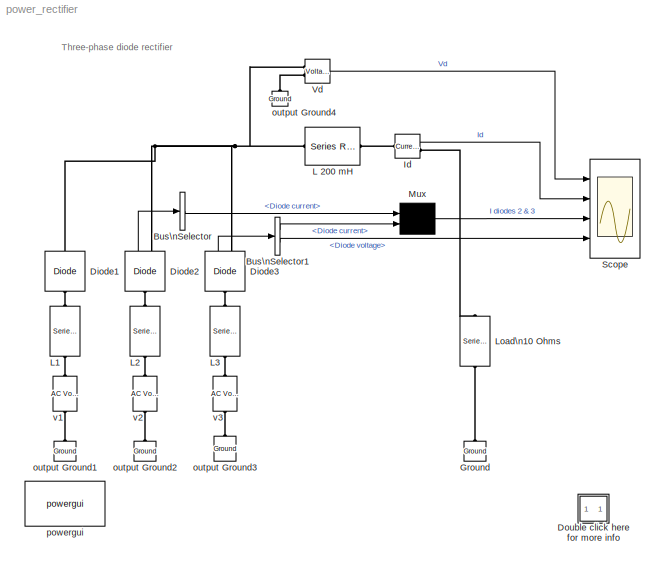
MODEL power_rectifier
KIND model
BLOCK [BusSelector] Bus\nSelector
  DialogController = Simulink.DDGSource_Bus
  OutputSignals = Diode current
  Ports = [1, 1]
BLOCK [BusSelector] Bus\nSelector1
  DialogController = Simulink.DDGSource_Bus
  OutputSignals = Diode current,Diode voltage
  Ports = [1, 2]
BLOCK [Reference] Diode1  REF=powerlib/Power\nElectronics/Diode
  AttributesFormatString = \\n
  Cs = 0.1e-6
  IC = 0
  Lon = 0
  Measurements = off
  Ports = [0, 0, 0, 0, 0, 1, 1]
  Ron = 1e-2
  Rs = 1000
  ShowPortLabels = on
  SourceBlock = powerlib/Power\nElectronics/Diode
  SourceType = Diode
  Vf = 0.8
BLOCK [Reference] Diode2  REF=powerlib/Power\nElectronics/Diode
  AttributesFormatString = \\n
  Cs = 0.1e-6
  IC = 0
  Lon = 0
  Measurements = on
  Ports = [0, 1, 0, 0, 0, 1, 1]
  Ron = 1e-2
  Rs = 1000
  ShowPortLabels = on
  SourceBlock = powerlib/Power\nElectronics/Diode
  SourceType = Diode
  Vf = 0.8
BLOCK [Reference] Diode3  REF=powerlib/Power\nElectronics/Diode
  AttributesFormatString = \\n
  Cs = 0.1e-6
  IC = 0
  Lon = 0
  Measurements = on
  Ports = [0, 1, 0, 0, 0, 1, 1]
  Ron = 1e-2
  Rs = 1000
  ShowPortLabels = on
  SourceBlock = powerlib/Power\nElectronics/Diode
  SourceType = Diode
  Vf = 0.8
BLOCK [SubSystem] Double click here for more info
  MaskDisplay = disp('?')
  MaskIconFrame = on
  MaskIconOpaque = on
  MaskIconRotate = none
  MaskIconUnits = autoscale
  MinAlgLoopOccurrences = off
  Ports = []
  RTWSystemCode = Auto
  TreatAsAtomicUnit = off
BLOCK [Reference] Ground  REF=powerlib/Elements/Ground
  AttributesFormatString = \\n
  LConnTagsString = a
  LeftPortType = p1
  PhysicalDomain = powersysdomain
  Ports = [0, 0, 0, 0, 0, 1]
  RightPortType = p1
  SourceBlock = powerlib/Elements/Ground
  SourceType = Ground
  SubClassName = unknown
BLOCK [Reference] Id  REF=powerlib/Measurements/Current Measurement
  AttributesFormatString = \\n
  OutputType = Magnitude
  PSBequivalent = 0
  PhasorSimulation = off
  Ports = [0, 1, 0, 0, 0, 1, 1]
  ShowPortLabels = on
  SourceBlock = powerlib/Measurements/Current Measurement
  SourceType = Current Measurement
  Tag = PoWeRsYsTeMmEaSuReMeNt
BLOCK [Reference] L 200 mH  REF=powerlib/Elements/Series RLC Branch
  AttributesFormatString = \\n
  Capacitance = inf
  Inductance = 200e-03
  LConnTagsString = __new0
  LeftPortType = p1
  Measurements = None
  PhysicalDomain = powersysdomain
  Ports = [0, 0, 0, 0, 0, 1, 1]
  RConnTagsString = __new0
  Resistance = 0
  RightPortType = p1
  SourceBlock = powerlib/Elements/Series RLC Branch
  SourceType = Series RLC Branch
  SubClassName = unknown
BLOCK [Reference] L1  REF=powerlib/Elements/Series RLC Branch
  AttributesFormatString = \\n
  Capacitance = inf
  Inductance = 5e-03
  LConnTagsString = __new0
  LeftPortType = p1
  Measurements = None
  PhysicalDomain = powersysdomain
  Ports = [0, 0, 0, 0, 0, 1, 1]
  RConnTagsString = __new0
  Resistance = 0
  RightPortType = p1
  SourceBlock = powerlib/Elements/Series RLC Branch
  SourceType = Series RLC Branch
  SubClassName = unknown
BLOCK [Reference] L2  REF=powerlib/Elements/Series RLC Branch
  AttributesFormatString = \\n
  Capacitance = inf
  Inductance = 5e-03
  LConnTagsString = __new0
  LeftPortType = p1
  Measurements = None
  PhysicalDomain = powersysdomain
  Ports = [0, 0, 0, 0, 0, 1, 1]
  RConnTagsString = __new0
  Resistance = 0
  RightPortType = p1
  SourceBlock = powerlib/Elements/Series RLC Branch
  SourceType = Series RLC Branch
  SubClassName = unknown
BLOCK [Reference] L3  REF=powerlib/Elements/Series RLC Branch
  AttributesFormatString = \\n
  Capacitance = inf
  Inductance = 5e-03
  LConnTagsString = __new0
  LeftPortType = p1
  Measurements = None
  PhysicalDomain = powersysdomain
  Ports = [0, 0, 0, 0, 0, 1, 1]
  RConnTagsString = __new0
  Resistance = 0
  RightPortType = p1
  SourceBlock = powerlib/Elements/Series RLC Branch
  SourceType = Series RLC Branch
  SubClassName = unknown
BLOCK [Reference] Load\n10 Ohms  REF=powerlib/Elements/Series RLC Branch
  AttributesFormatString = \\n
  Capacitance = inf
  Inductance = 0
  LConnTagsString = __new0
  LeftPortType = p1
  Measurements = None
  PhysicalDomain = powersysdomain
  Ports = [0, 0, 0, 0, 0, 1, 1]
  RConnTagsString = __new0
  Resistance = 10
  RightPortType = p1
  SourceBlock = powerlib/Elements/Series RLC Branch
  SourceType = Series RLC Branch
  SubClassName = unknown
BLOCK [Mux] Mux
  Inputs = 2
  Ports = [2, 1]
BLOCK [Scope] Scope
  DataFormat = Structure
  LimitDataPoints = off
  NumInputPorts = 4
  Ports = [4]
  TimeRange = 0.1
  YMax = 200~20~20~500
  YMin = 0~0~0~-500
  ZoomMode = yonly
BLOCK [Reference] Vd  REF=powerlib/Measurements/Voltage Measurement
  AttributesFormatString = \\n
  OutputType = Magnitude
  PSBequivalent = 0
  PhasorSimulation = off
  Ports = [0, 1, 0, 0, 0, 2]
  ShowPortLabels = on
  SourceBlock = powerlib/Measurements/Voltage Measurement
  SourceType = Voltage Measurement
  Tag = PoWeRsYsTeMmEaSuReMeNt
BLOCK [Reference] output Ground1  REF=powerlib/Elements/Ground
  AttributesFormatString = \\n
  LConnTagsString = a
  LeftPortType = p1
  PhysicalDomain = powersysdomain
  Ports = [0, 0, 0, 0, 0, 1]
  RightPortType = p1
  SourceBlock = powerlib/Elements/Ground
  SourceType = Ground
  SubClassName = unknown
BLOCK [Reference] output Ground2  REF=powerlib/Elements/Ground
  AttributesFormatString = \\n
  LConnTagsString = a
  LeftPortType = p1
  PhysicalDomain = powersysdomain
  Ports = [0, 0, 0, 0, 0, 1]
  RightPortType = p1
  SourceBlock = powerlib/Elements/Ground
  SourceType = Ground
  SubClassName = unknown
BLOCK [Reference] output Ground3  REF=powerlib/Elements/Ground
  AttributesFormatString = \\n
  LConnTagsString = a
  LeftPortType = p1
  PhysicalDomain = powersysdomain
  Ports = [0, 0, 0, 0, 0, 1]
  RightPortType = p1
  SourceBlock = powerlib/Elements/Ground
  SourceType = Ground
  SubClassName = unknown
BLOCK [Reference] output Ground4  REF=powerlib/Elements/Ground
  AttributesFormatString = \\n
  LConnTagsString = a
  LeftPortType = p1
  PhysicalDomain = powersysdomain
  Ports = [0, 0, 0, 0, 0, 1]
  RightPortType = p1
  SourceBlock = powerlib/Elements/Ground
  SourceType = Ground
  SubClassName = unknown
BLOCK [Reference] powergui  REF=powerlib/powergui
  DisplayStyle = 1
  Frange = [0:2:500]
  FreqAxis = off
  MaxFrequency = 1000
  Ports = []
  Priority = 2
  RmsSteady = 1
  ShowPortLabels = on
  SourceBlock = powerlib/powergui
  SourceType = PSB option menu block
  StartTime = 0.0
  Ts = 0
  Xlog = on
  Ylog = off
  ZoomFFT = on
  cycles = 1
  display = off
  echomessages = on
  frequency = 60
  frequencyindice = 1
  frequencyindicesteady = 1
  fundamental = 60
  methode = off
  save = off
  variable = ZData
BLOCK [Reference] v1  REF=powerlib/Electrical\nSources/AC Voltage Source
  Amplitude = 120*sqrt(2)
  AttributesFormatString = \\n
  Description = source block
  Frequency = 60
  Measurements = None
  Phase = 0
  Ports = [0, 0, 0, 0, 0, 1, 1]
  SampleTime = 0
  ShowPortLabels = on
  SourceBlock = powerlib/Electrical\nSources/AC Voltage Source
  SourceType = AC Voltage Source
BLOCK [Reference] v2  REF=powerlib/Electrical\nSources/AC Voltage Source
  Amplitude = 120*sqrt(2)
  AttributesFormatString = \\n
  Description = source block
  Frequency = 60
  Measurements = None
  Phase = -120
  Ports = [0, 0, 0, 0, 0, 1, 1]
  SampleTime = 0
  ShowPortLabels = on
  SourceBlock = powerlib/Electrical\nSources/AC Voltage Source
  SourceType = AC Voltage Source
BLOCK [Reference] v3  REF=powerlib/Electrical\nSources/AC Voltage Source
  Amplitude = 120*sqrt(2)
  AttributesFormatString = \\n
  Description = source block
  Frequency = 60
  Measurements = None
  Phase = 120
  Ports = [0, 0, 0, 0, 0, 1, 1]
  SampleTime = 0
  ShowPortLabels = on
  SourceBlock = powerlib/Electrical\nSources/AC Voltage Source
  SourceType = AC Voltage Source
ANNOTATION (root): Three-phase diode rectifier
ANNOTATION Double click here for more info: 1. Simulation with continuous integration method
ANNOTATION Double click here for more info: 2. Simulation with discretized system
ANNOTATION Double click here for more info: A 10 ohm load is fed in DC through a three-phase rectifier from an inductive\nsource (5 mH; 120 V rms). The rectified current is filtered by a 200mH inductance.\n\nDiodes are connected in parallel with RC snubbers (1000 ohms-0.1 uF) \nThe measurement outputs of Diode2 and Diode3 is used to observe the diode voltage and current.
ANNOTATION Double click here for more info: Check the simulation parameters in the Simulation/Parameters menu\nThe following intregation algorithm should be used: Variable time step ode23tb with default parameters.\nStart the simulation and observe waveforms on the four trace Scope block.\n\nAfter a transient period the load current Id stabilizes at 12.7 A. Note that most of the third harmonic which\ncan be seen in the rectified voltage Vd ...<+444ch>
ANNOTATION Double click here for more info: Demonstration
ANNOTATION Double click here for more info: Description
ANNOTATION Double click here for more info: G. Sybille (Hydro-Quebec)
ANNOTATION Double click here for more info: Open the Powergui block menu. select 'Discretize electrical model' and specify a sample time of 50e-6 secs.\nRestart the simulation.\n\nYour system is now discretized and simulated at fixed time steps.\nCompare waveforms with those obtained with the continuous integration algorithm (ode23tb).
ANNOTATION Double click here for more info: This demonstration illustrates use of the Diode block \nto simulate a three-phase rectifier and\ncompares continuous vs discrete simulations
LINE Bus\nSelector1:1 -> Mux:2
LINE Bus\nSelector1:2 -> Scope:4
LINE Bus\nSelector:1 -> Mux:1
LINE Diode2:1 -> Bus\nSelector:1
LINE Diode3:1 -> Bus\nSelector1:1
LINE Id:1 -> Scope:2
LINE Mux:1 -> Scope:3
LINE Vd:1 -> Scope:1
PLINE Diode1:LConn1 -- L1:RConn1
PNET net1: Diode1:RConn1 -- Diode2:RConn1 -- Diode3:RConn1 -- L 200 mH:LConn1 -- Vd:LConn1
PLINE Diode2:LConn1 -- L2:RConn1
PLINE Diode3:LConn1 -- L3:RConn1
PLINE Ground:LConn1 -- Load\n10 Ohms:RConn1
PLINE Id:LConn1 -- L 200 mH:RConn1
PLINE Id:RConn1 -- Load\n10 Ohms:LConn1
PLINE L1:LConn1 -- v1:RConn1
PLINE L2:LConn1 -- v2:RConn1
PLINE L3:LConn1 -- v3:RConn1
PLINE Vd:LConn2 -- output Ground4:LConn1
PLINE output Ground1:LConn1 -- v1:LConn1
PLINE output Ground2:LConn1 -- v2:LConn1
PLINE output Ground3:LConn1 -- v3:LConn1
note: PNET lines group multi-terminal physical nets as a canonical sorted terminal list (undirected conserving connections); 2-terminal nets keep the pairwise PLINE form
